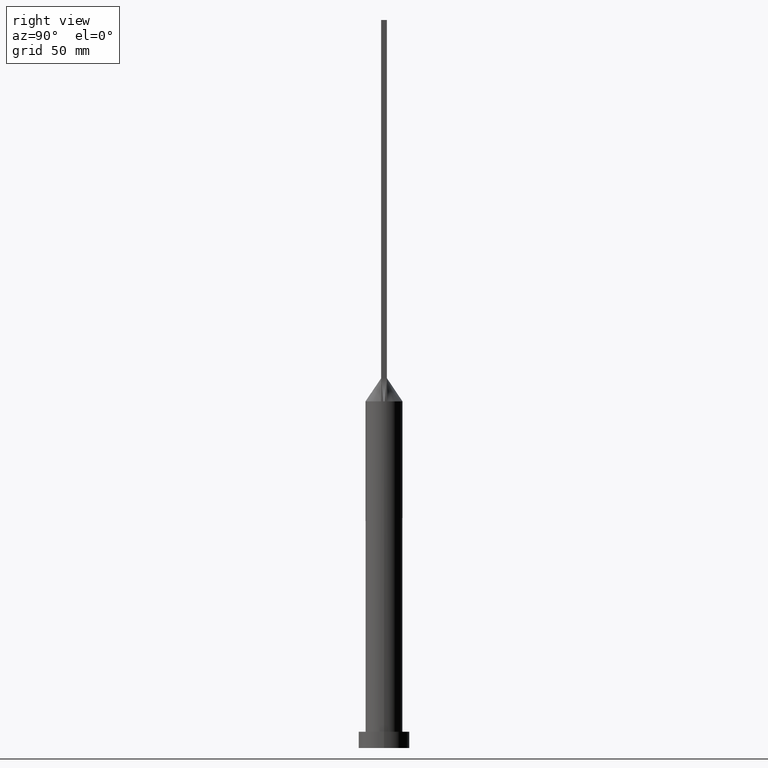
[diagram: clean part render]
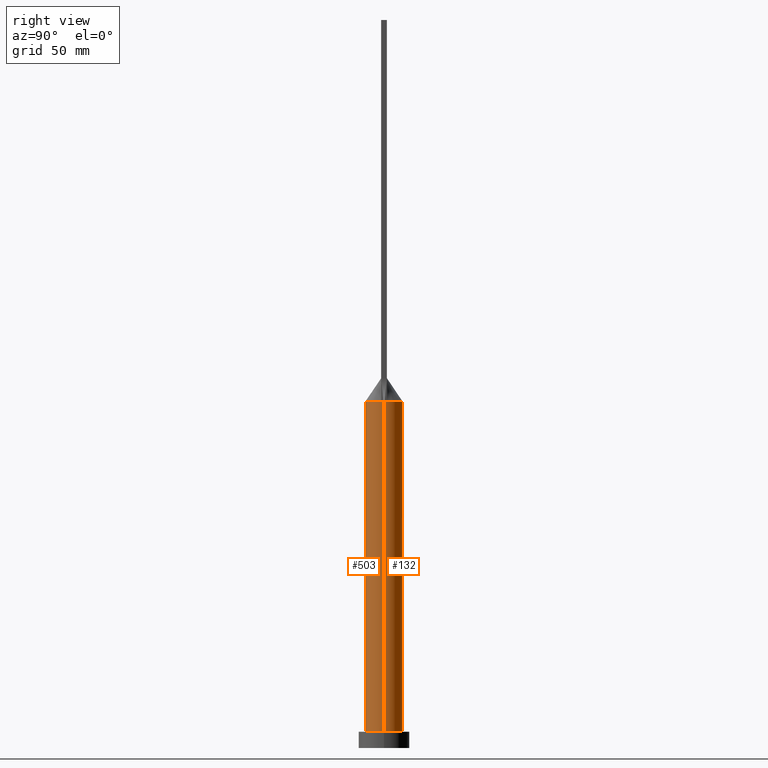
[diagram: same view with one multi-face feature highlighted, each face labeled with its STEP entity id]
A machine part, right view. The highlighted faces form ONE feature: a constant-radius fillet chain: 2 tangent blend faces with common blend radius 8 mm. The faces share edges in the B-rep.
Their STEP definitions:
[1] entity #132 (Cylinder):
#2 = CARTESIAN_POINT ( 'NONE',  ( 6.883287261198673512, 4.100742229440780484, 150.0000000000000284 ) ) ;
#5 = CARTESIAN_POINT ( 'NONE',  ( 4.217034177653714799, 6.817775467282659818, 150.0000000000000284 ) ) ;
#6 = CARTESIAN_POINT ( 'NONE',  ( -8.000000000000000000, 0.000000000000000000, 7.000000000000000000 ) ) ;
#7 = CARTESIAN_POINT ( 'NONE',  ( -6.389139692789916225, 4.834731051311460526, 150.0000000000000284 ) ) ;
#19 = VERTEX_POINT ( 'NONE', #341 ) ;
#25 = ORIENTED_EDGE ( 'NONE', *, *, #401, .F. ) ;
#50 = DIRECTION ( 'NONE',  ( 1.000000000000000000, 0.000000000000000000, 0.000000000000000000 ) ) ;
#55 = CARTESIAN_POINT ( 'NONE',  ( 2.232993174580878204, 7.702525839322459156, 150.0000000000000284 ) ) ;
#60 = CARTESIAN_POINT ( 'NONE',  ( -5.434261125067506804, 5.890653037160105576, 150.0000000000000000 ) ) ;
#96 = CARTESIAN_POINT ( 'NONE',  ( 5.056714967162550423, 6.220536417275850383, 150.0000000000000284 ) ) ;
#102 = CARTESIAN_POINT ( 'NONE',  ( 7.088837466865212988, 3.729743859143727303, 150.0000000000000284 ) ) ;
#105 = CARTESIAN_POINT ( 'NONE',  ( -0.5677556330368852544, 7.999999999999998224, 150.0000000000000000 ) ) ;
#108 = DIRECTION ( 'NONE',  ( -0.000000000000000000, -0.000000000000000000, -1.000000000000000000 ) ) ;
#124 = LINE ( 'NONE', #573, #408 ) ;
#131 = CARTESIAN_POINT ( 'NONE',  ( 7.897939137640443974, 1.273861156091724789, 150.0000000000000000 ) ) ;
#132 = ADVANCED_FACE ( 'NONE', ( #586 ), #241, .T. ) ;
#144 = AXIS2_PLACEMENT_3D ( 'NONE', #635, #435, #578 ) ;
#153 = ORIENTED_EDGE ( 'NONE', *, *, #580, .F. ) ;
#169 = B_SPLINE_CURVE_WITH_KNOTS ( 'NONE', 3,
 ( #131, #548, #514, #102, #2, #399, #448, #347, #96, #5, #604, #350, #55, #599, #405, #105, #361, #304, #198, #358, #312, #454, #60, #462, #7, #203, #409, #607, #195, #601 ),
 .UNSPECIFIED., .F., .F.,
 ( 4, 2, 2, 2, 2, 2, 2, 2, 2, 2, 2, 2, 2, 2, 4 ),
 ( 0.000000000000000000, 0.1250000000000000000, 0.1875000000000000000, 0.2500000000000000000, 0.3125000000000000000, 0.3750000000000000000, 0.4375000000000000000, 0.5000000000000000000, 0.5625000000000000000, 0.6250000000000000000, 0.6875000000000000000, 0.7500000000000000000, 0.8125000000000000000, 0.8750000000000000000, 1.000000000000000000 ),
 .UNSPECIFIED. ) ;
#173 = DIRECTION ( 'NONE',  ( -0.000000000000000000, -0.000000000000000000, -1.000000000000000000 ) ) ;
#181 = VERTEX_POINT ( 'NONE', #6 ) ;
#194 = DIRECTION ( 'NONE',  ( 1.000000000000000000, 0.000000000000000000, 0.000000000000000000 ) ) ;
#195 = CARTESIAN_POINT ( 'NONE',  ( -7.793128424795161102, 1.923622864214273198, 150.0000000000000000 ) ) ;
#198 = CARTESIAN_POINT ( 'NONE',  ( -2.762781956618985291, 7.527418670504290255, 150.0000000000000000 ) ) ;
#203 = CARTESIAN_POINT ( 'NONE',  ( -6.883287261198669960, 4.100742229440782260, 150.0000000000000000 ) ) ;
#211 = AXIS2_PLACEMENT_3D ( 'NONE', #242, #496, #50 ) ;
#217 = VERTEX_POINT ( 'NONE', #410 ) ;
#220 = EDGE_CURVE ( 'NONE', #19, #298, #362, .T. ) ;
#233 = CARTESIAN_POINT ( 'NONE',  ( 0.000000000000000000, 0.000000000000000000, 7.000000000000000000 ) ) ;
#241 = CYLINDRICAL_SURFACE ( 'NONE', #144, 8.000000000000000000 ) ;
#242 = CARTESIAN_POINT ( 'NONE',  ( 0.000000000000000000, 0.000000000000000000, 150.0000000000000000 ) ) ;
#264 = CIRCLE ( 'NONE', #211, 8.000000000000000000 ) ;
#267 = VERTEX_POINT ( 'NONE', #407 ) ;
#279 = CIRCLE ( 'NONE', #366, 8.000000000000000000 ) ;
#280 = DIRECTION ( 'NONE',  ( 0.000000000000000000, 0.000000000000000000, 1.000000000000000000 ) ) ;
#294 = EDGE_CURVE ( 'NONE', #298, #181, #279, .T. ) ;
#298 = VERTEX_POINT ( 'NONE', #383 ) ;
#302 = ORIENTED_EDGE ( 'NONE', *, *, #609, .F. ) ;
#304 = CARTESIAN_POINT ( 'NONE',  ( -2.232993174580875539, 7.702525839322460044, 150.0000000000000000 ) ) ;
#312 = CARTESIAN_POINT ( 'NONE',  ( -4.217034177653714799, 6.817775467282660706, 150.0000000000000284 ) ) ;
#341 = CARTESIAN_POINT ( 'NONE',  ( 7.999674421998661522, 1.953788361903730848E-15, 150.0000000000000000 ) ) ;
#346 = CARTESIAN_POINT ( 'NONE',  ( 0.000000000000000000, 0.000000000000000000, 150.0000000000000000 ) ) ;
#347 = CARTESIAN_POINT ( 'NONE',  ( 5.434261125067508580, 5.890653037160103800, 150.0000000000000284 ) ) ;
#350 = CARTESIAN_POINT ( 'NONE',  ( 2.762781956618984847, 7.527418670504289366, 150.0000000000000284 ) ) ;
#358 = CARTESIAN_POINT ( 'NONE',  ( -3.754841939107308235, 7.084924699190308317, 150.0000000000000000 ) ) ;
#361 = CARTESIAN_POINT ( 'NONE',  ( -1.135368687448994329, 7.938897956688654389, 150.0000000000000284 ) ) ;
#362 = LINE ( 'NONE', #403, #563 ) ;
#366 = AXIS2_PLACEMENT_3D ( 'NONE', #233, #280, #445 ) ;
#383 = CARTESIAN_POINT ( 'NONE',  ( 8.000000000000000000, 9.797174393178825657E-16, 7.000000000000000000 ) ) ;
#399 = CARTESIAN_POINT ( 'NONE',  ( 6.389139692789920666, 4.834731051311459638, 150.0000000000000284 ) ) ;
#401 = EDGE_CURVE ( 'NONE', #446, #267, #169, .T. ) ;
#403 = CARTESIAN_POINT ( 'NONE',  ( 8.000000000000000000, 9.797174393178825657E-16, 150.0000000000000000 ) ) ;
#405 = CARTESIAN_POINT ( 'NONE',  ( 0.5677556330368851434, 7.999999999999998224, 150.0000000000000000 ) ) ;
#407 = CARTESIAN_POINT ( 'NONE',  ( -7.897950825069725234, 1.273863048877633020, 150.0000000000000000 ) ) ;
#408 = VECTOR ( 'NONE', #173, 1000.000000000000000 ) ;
#409 = CARTESIAN_POINT ( 'NONE',  ( -7.088837466865208548, 3.729743859143727747, 149.9999999999999716 ) ) ;
#410 = CARTESIAN_POINT ( 'NONE',  ( -7.999674421998661522, -1.996358676257538358E-15, 150.0000000000000000 ) ) ;
#418 = ORIENTED_EDGE ( 'NONE', *, *, #508, .F. ) ;
#423 = CARTESIAN_POINT ( 'NONE',  ( 7.897939137640443974, 1.273861156091724789, 150.0000000000000000 ) ) ;
#435 = DIRECTION ( 'NONE',  ( -0.000000000000000000, -0.000000000000000000, -1.000000000000000000 ) ) ;
#445 = DIRECTION ( 'NONE',  ( 1.000000000000000000, 0.000000000000000000, 0.000000000000000000 ) ) ;
#446 = VERTEX_POINT ( 'NONE', #423 ) ;
#448 = CARTESIAN_POINT ( 'NONE',  ( 6.100409024666552327, 5.197691498289451317, 150.0000000000000284 ) ) ;
#454 = CARTESIAN_POINT ( 'NONE',  ( -5.056714967162549534, 6.220536417275851271, 150.0000000000000000 ) ) ;
#462 = CARTESIAN_POINT ( 'NONE',  ( -6.100409024666552327, 5.197691498289451317, 150.0000000000000000 ) ) ;
#467 = EDGE_LOOP ( 'NONE', ( #302, #471, #480, #418, #153, #25 ) ) ;
#471 = ORIENTED_EDGE ( 'NONE', *, *, #220, .T. ) ;
#480 = ORIENTED_EDGE ( 'NONE', *, *, #294, .T. ) ;
#496 = DIRECTION ( 'NONE',  ( 0.000000000000000000, 0.000000000000000000, 1.000000000000000000 ) ) ;
#508 = EDGE_CURVE ( 'NONE', #217, #181, #124, .T. ) ;
#514 = CARTESIAN_POINT ( 'NONE',  ( 7.597511974649646227, 2.632154125590748350, 149.9999999999999716 ) ) ;
#523 = CIRCLE ( 'NONE', #610, 8.000000000000000000 ) ;
#548 = CARTESIAN_POINT ( 'NONE',  ( 7.793128424795161990, 1.923622864214272088, 150.0000000000000000 ) ) ;
#563 = VECTOR ( 'NONE', #108, 1000.000000000000000 ) ;
#573 = CARTESIAN_POINT ( 'NONE',  ( -8.000000000000000000, 0.000000000000000000, 150.0000000000000000 ) ) ;
#578 = DIRECTION ( 'NONE',  ( -1.000000000000000000, 0.000000000000000000, 0.000000000000000000 ) ) ;
#580 = EDGE_CURVE ( 'NONE', #267, #217, #264, .T. ) ;
#586 = FACE_OUTER_BOUND ( 'NONE', #467, .T. ) ;
#599 = CARTESIAN_POINT ( 'NONE',  ( 1.135368687448996328, 7.938897956688654389, 150.0000000000000284 ) ) ;
#601 = CARTESIAN_POINT ( 'NONE',  ( -7.897950825069725234, 1.273863048877633020, 150.0000000000000000 ) ) ;
#604 = CARTESIAN_POINT ( 'NONE',  ( 3.754841939107309567, 7.084924699190306541, 150.0000000000000000 ) ) ;
#607 = CARTESIAN_POINT ( 'NONE',  ( -7.597511974649647115, 2.632154125590751903, 150.0000000000000000 ) ) ;
#609 = EDGE_CURVE ( 'NONE', #19, #446, #523, .T. ) ;
#610 = AXIS2_PLACEMENT_3D ( 'NONE', #346, #630, #194 ) ;
#630 = DIRECTION ( 'NONE',  ( 0.000000000000000000, 0.000000000000000000, 1.000000000000000000 ) ) ;
#635 = CARTESIAN_POINT ( 'NONE',  ( 0.000000000000000000, 0.000000000000000000, 150.0000000000000000 ) ) ;
[2] entity #503 (Cylinder):
#6 = CARTESIAN_POINT ( 'NONE',  ( -8.000000000000000000, 0.000000000000000000, 7.000000000000000000 ) ) ;
#9 = CARTESIAN_POINT ( 'NONE',  ( 0.000000000000000000, 0.000000000000000000, 150.0000000000000000 ) ) ;
#10 = ORIENTED_EDGE ( 'NONE', *, *, #166, .F. ) ;
#19 = VERTEX_POINT ( 'NONE', #341 ) ;
#29 = CIRCLE ( 'NONE', #565, 8.000000000000000000 ) ;
#31 = FACE_OUTER_BOUND ( 'NONE', #86, .T. ) ;
#86 = EDGE_LOOP ( 'NONE', ( #368, #322, #116, #10, #231, #98 ) ) ;
#98 = ORIENTED_EDGE ( 'NONE', *, *, #615, .T. ) ;
#108 = DIRECTION ( 'NONE',  ( -0.000000000000000000, -0.000000000000000000, -1.000000000000000000 ) ) ;
#116 = ORIENTED_EDGE ( 'NONE', *, *, #342, .F. ) ;
#124 = LINE ( 'NONE', #573, #408 ) ;
#128 = CARTESIAN_POINT ( 'NONE',  ( 0.000000000000000000, 0.000000000000000000, 150.0000000000000000 ) ) ;
#141 = DIRECTION ( 'NONE',  ( 1.000000000000000000, 1.776356839400250465E-15, 0.000000000000000000 ) ) ;
#151 = DIRECTION ( 'NONE',  ( 0.000000000000000000, 0.000000000000000000, 1.000000000000000000 ) ) ;
#166 = EDGE_CURVE ( 'NONE', #217, #370, #493, .T. ) ;
#173 = DIRECTION ( 'NONE',  ( -0.000000000000000000, -0.000000000000000000, -1.000000000000000000 ) ) ;
#181 = VERTEX_POINT ( 'NONE', #6 ) ;
#190 = DIRECTION ( 'NONE',  ( 1.000000000000000000, 0.000000000000000000, 0.000000000000000000 ) ) ;
#191 = AXIS2_PLACEMENT_3D ( 'NONE', #128, #344, #494 ) ;
#200 = AXIS2_PLACEMENT_3D ( 'NONE', #595, #151, #359 ) ;
#217 = VERTEX_POINT ( 'NONE', #410 ) ;
#220 = EDGE_CURVE ( 'NONE', #19, #298, #362, .T. ) ;
#231 = ORIENTED_EDGE ( 'NONE', *, *, #508, .T. ) ;
#249 = EDGE_CURVE ( 'NONE', #367, #19, #29, .T. ) ;
#255 = CIRCLE ( 'NONE', #416, 8.000000000000000000 ) ;
#265 = DIRECTION ( 'NONE',  ( -1.000000000000000000, 0.000000000000000000, 0.000000000000000000 ) ) ;
#298 = VERTEX_POINT ( 'NONE', #383 ) ;
#314 = DIRECTION ( 'NONE',  ( 0.000000000000000000, 0.000000000000000000, 1.000000000000000000 ) ) ;
#322 = ORIENTED_EDGE ( 'NONE', *, *, #249, .F. ) ;
#340 = CARTESIAN_POINT ( 'NONE',  ( 0.000000000000000000, 0.000000000000000000, 7.000000000000000000 ) ) ;
#341 = CARTESIAN_POINT ( 'NONE',  ( 7.999674421998661522, 1.953788361903730848E-15, 150.0000000000000000 ) ) ;
#342 = EDGE_CURVE ( 'NONE', #370, #367, #506, .T. ) ;
#344 = DIRECTION ( 'NONE',  ( 0.000000000000000000, 0.000000000000000000, 1.000000000000000000 ) ) ;
#359 = DIRECTION ( 'NONE',  ( 1.000000000000000000, 0.000000000000000000, 0.000000000000000000 ) ) ;
#362 = LINE ( 'NONE', #403, #563 ) ;
#364 = AXIS2_PLACEMENT_3D ( 'NONE', #522, #484, #265 ) ;
#367 = VERTEX_POINT ( 'NONE', #545 ) ;
#368 = ORIENTED_EDGE ( 'NONE', *, *, #220, .F. ) ;
#370 = VERTEX_POINT ( 'NONE', #626 ) ;
#383 = CARTESIAN_POINT ( 'NONE',  ( 8.000000000000000000, 9.797174393178825657E-16, 7.000000000000000000 ) ) ;
#392 = DIRECTION ( 'NONE',  ( 0.000000000000000000, 0.000000000000000000, 1.000000000000000000 ) ) ;
#403 = CARTESIAN_POINT ( 'NONE',  ( 8.000000000000000000, 9.797174393178825657E-16, 150.0000000000000000 ) ) ;
#408 = VECTOR ( 'NONE', #173, 1000.000000000000000 ) ;
#410 = CARTESIAN_POINT ( 'NONE',  ( -7.999674421998661522, -1.996358676257538358E-15, 150.0000000000000000 ) ) ;
#416 = AXIS2_PLACEMENT_3D ( 'NONE', #340, #392, #190 ) ;
#484 = DIRECTION ( 'NONE',  ( -0.000000000000000000, -0.000000000000000000, -1.000000000000000000 ) ) ;
#493 = CIRCLE ( 'NONE', #200, 8.000000000000000000 ) ;
#494 = DIRECTION ( 'NONE',  ( 1.000000000000000000, 0.000000000000000000, 0.000000000000000000 ) ) ;
#503 = ADVANCED_FACE ( 'NONE', ( #31 ), #576, .T. ) ;
#506 = CIRCLE ( 'NONE', #191, 8.000000000000000000 ) ;
#508 = EDGE_CURVE ( 'NONE', #217, #181, #124, .T. ) ;
#522 = CARTESIAN_POINT ( 'NONE',  ( 0.000000000000000000, 0.000000000000000000, 150.0000000000000000 ) ) ;
#545 = CARTESIAN_POINT ( 'NONE',  ( 7.897952327758385849, -1.273863293446191536, 150.0000000000000000 ) ) ;
#563 = VECTOR ( 'NONE', #108, 1000.000000000000000 ) ;
#565 = AXIS2_PLACEMENT_3D ( 'NONE', #9, #314, #141 ) ;
#573 = CARTESIAN_POINT ( 'NONE',  ( -8.000000000000000000, 0.000000000000000000, 150.0000000000000000 ) ) ;
#576 = CYLINDRICAL_SURFACE ( 'NONE', #364, 8.000000000000000000 ) ;
#595 = CARTESIAN_POINT ( 'NONE',  ( 0.000000000000000000, 0.000000000000000000, 150.0000000000000000 ) ) ;
#615 = EDGE_CURVE ( 'NONE', #181, #298, #255, .T. ) ;
#626 = CARTESIAN_POINT ( 'NONE',  ( -7.897940634034629426, -1.273861398824698732, 150.0000000000000000 ) ) ;